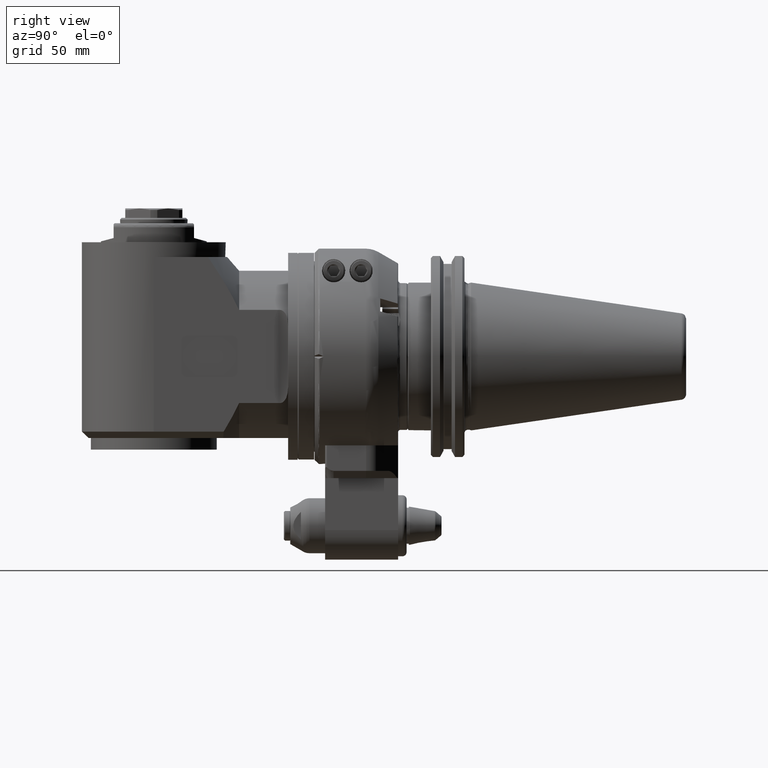
[diagram: clean part render]
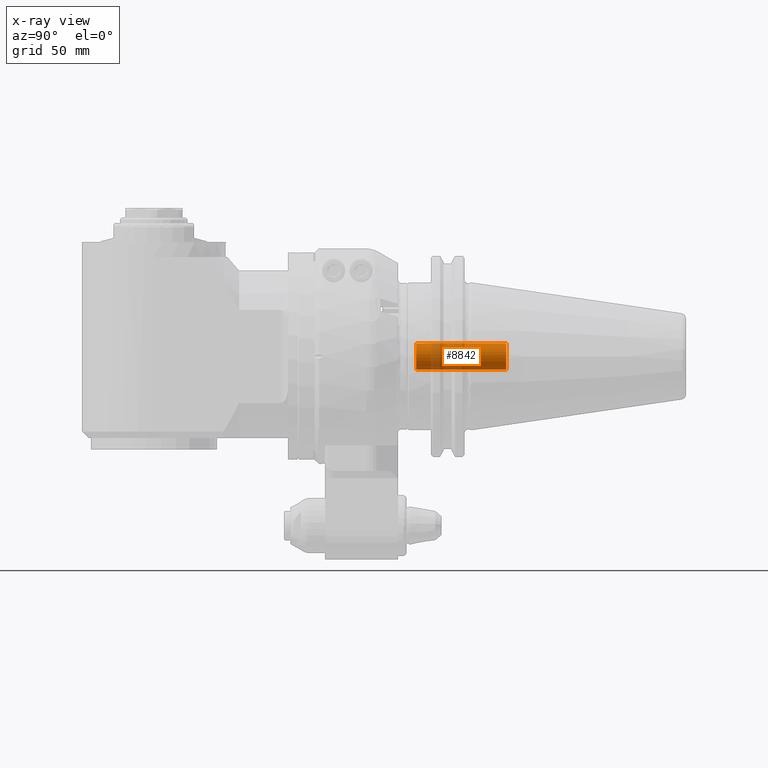
[diagram: x-ray — body ghosted, one internal face saturated and labeled with its STEP entity id]
A machine part, right view, then the same camera in x-ray: the body is ghosted and one INTERNAL B-rep face — a face not visible from any outside direction — is saturated and labeled: STEP entity #8842.
In plain terms, the highlighted cylindrical surface (bore or boss wall) has radius 6.25 mm, axis along (0, 1, 0).
Its self-contained STEP definition (entity closure, byte-faithful):
#806=LINE('',#17187,#1423);
#1423=VECTOR('',#12188,6.25);
#1694=CYLINDRICAL_SURFACE('',#9841,6.25);
#2209=FACE_OUTER_BOUND('',#2802,.T.);
#2802=EDGE_LOOP('',(#7569,#7570,#7571,#7572,#7573));
#3329=CIRCLE('',#9840,6.25);
#3330=CIRCLE('',#9842,6.25);
#3331=CIRCLE('',#9843,6.25);
#4077=VERTEX_POINT('',#17180);
#4078=VERTEX_POINT('',#17183);
#4079=VERTEX_POINT('',#17184);
#5273=EDGE_CURVE('',#4077,#4077,#3329,.T.);
#5274=EDGE_CURVE('',#4078,#4079,#3330,.T.);
#5275=EDGE_CURVE('',#4079,#4078,#3331,.T.);
#5276=EDGE_CURVE('',#4079,#4077,#806,.T.);
#7569=ORIENTED_EDGE('',*,*,#5274,.F.);
#7570=ORIENTED_EDGE('',*,*,#5275,.F.);
#7571=ORIENTED_EDGE('',*,*,#5276,.T.);
#7572=ORIENTED_EDGE('',*,*,#5273,.F.);
#7573=ORIENTED_EDGE('',*,*,#5276,.F.);
#8842=ADVANCED_FACE('',(#2209),#1694,.F.);
#9840=AXIS2_PLACEMENT_3D('',#17181,#12180,#12181);
#9841=AXIS2_PLACEMENT_3D('',#17182,#12182,#12183);
#9842=AXIS2_PLACEMENT_3D('',#17185,#12184,#12185);
#9843=AXIS2_PLACEMENT_3D('',#17186,#12186,#12187);
#12180=DIRECTION('center_axis',(0.,-1.,0.));
#12181=DIRECTION('ref_axis',(0.,0.,1.));
#12182=DIRECTION('center_axis',(0.,1.,0.));
#12183=DIRECTION('ref_axis',(0.,0.,1.));
#12184=DIRECTION('center_axis',(0.,1.,0.));
#12185=DIRECTION('ref_axis',(1.,0.,0.));
#12186=DIRECTION('center_axis',(0.,1.,0.));
#12187=DIRECTION('ref_axis',(1.,0.,0.));
#12188=DIRECTION('',(0.,1.,0.));
#17180=CARTESIAN_POINT('',(0.,90.6,-6.25));
#17181=CARTESIAN_POINT('Origin',(0.,90.6,0.));
#17182=CARTESIAN_POINT('Origin',(0.,95.6,0.));
#17183=CARTESIAN_POINT('',(-6.25,48.,-7.65404249467096E-16));
#17184=CARTESIAN_POINT('',(-7.65404249467096E-16,48.,-6.25));
#17185=CARTESIAN_POINT('Origin',(0.,48.,0.));
#17186=CARTESIAN_POINT('Origin',(0.,48.,0.));
#17187=CARTESIAN_POINT('',(-7.65404249467096E-16,95.6,-6.25));